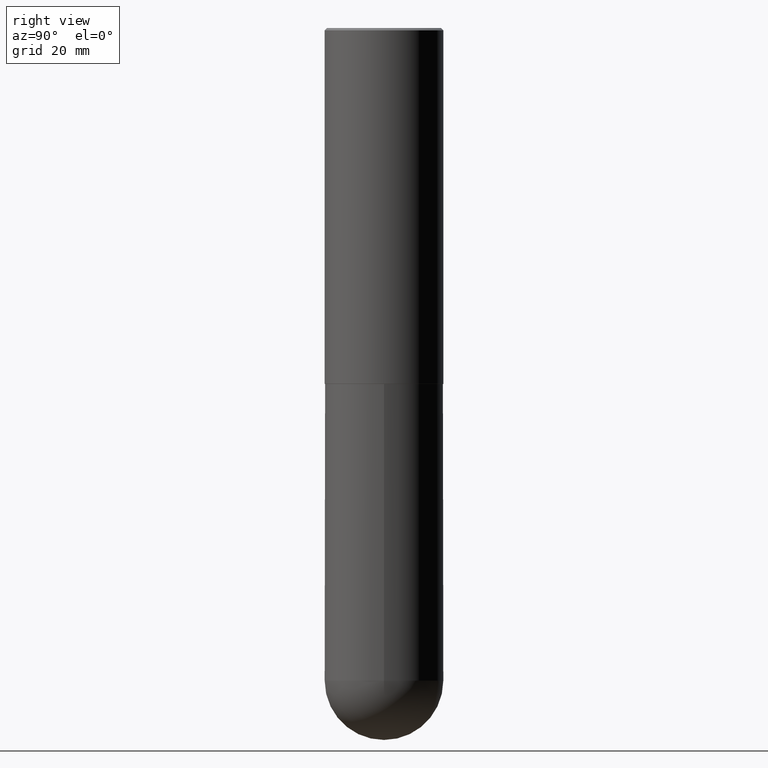
[diagram: clean part render]
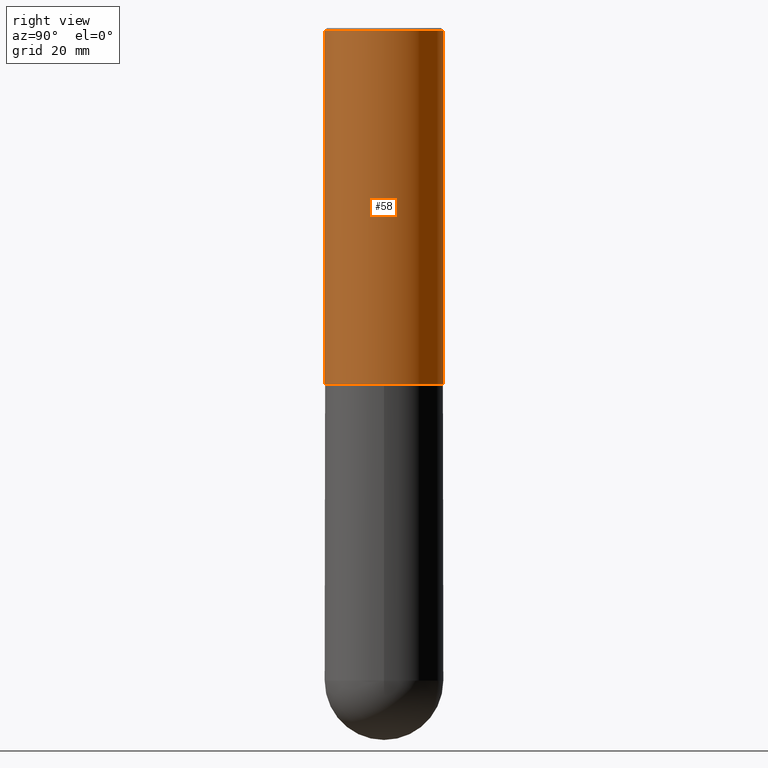
[diagram: same view with one face highlighted and labeled with its STEP entity id]
A machine part, right view. The second image highlights one B-rep face of the part: STEP entity #58.
In plain terms, the highlighted cylindrical surface (partial cylindrical patch) has radius 12.7 mm, axis along (-0, 0, 1).
Its self-contained STEP definition (entity closure, byte-faithful):
#4 = EDGE_CURVE ( 'NONE', #243, #206, #263, .T. ) ;
#9 = AXIS2_PLACEMENT_3D ( 'NONE', #41, #379, #201 ) ;
#17 = DIRECTION ( 'NONE',  ( -2.445681918219229661E-29, 3.491176150280740574E-15, 1.000000000000000000 ) ) ;
#28 = VECTOR ( 'NONE', #184, 39.37007874015748143 ) ;
#38 = DIRECTION ( 'NONE',  ( -6.982962677686265922E-15, -1.000000000000000000, 3.491176150280740574E-15 ) ) ;
#41 = CARTESIAN_POINT ( 'NONE',  ( 7.334600072739471352E-29, -1.047003727469194245E-14, -2.999000000000000554 ) ) ;
#57 = CIRCLE ( 'NONE', #288, 0.5000000000000000000 ) ;
#58 = ADVANCED_FACE ( 'NONE', ( #192 ), #231, .T. ) ;
#65 = DIRECTION ( 'NONE',  ( -2.445681918219229661E-29, 3.491176150280740574E-15, 1.000000000000000000 ) ) ;
#73 = AXIS2_PLACEMENT_3D ( 'NONE', #365, #65, #38 ) ;
#94 = CIRCLE ( 'NONE', #9, 0.5000000000000004441 ) ;
#98 = DIRECTION ( 'NONE',  ( -2.445681918219229661E-29, 3.491176150280740574E-15, 1.000000000000000000 ) ) ;
#115 = CARTESIAN_POINT ( 'NONE',  ( -3.430248998885764992E-15, -0.5000000000000001110, -0.01999999999999835937 ) ) ;
#140 = ORIENTED_EDGE ( 'NONE', *, *, #410, .F. ) ;
#184 = DIRECTION ( 'NONE',  ( -2.445681918219229661E-29, 3.491176150280740574E-15, 1.000000000000000000 ) ) ;
#192 = FACE_OUTER_BOUND ( 'NONE', #199, .T. ) ;
#197 = VECTOR ( 'NONE', #98, 39.37007874015748143 ) ;
#199 = EDGE_LOOP ( 'NONE', ( #362, #328, #140, #336 ) ) ;
#201 = DIRECTION ( 'NONE',  ( -6.982962677686265133E-15, -1.000000000000000000, 3.278217592397113101E-15 ) ) ;
#206 = VERTEX_POINT ( 'NONE', #115 ) ;
#219 = CARTESIAN_POINT ( 'NONE',  ( 3.552713678800501718E-15, 0.5000000000000002220, -1.745588075140371076E-15 ) ) ;
#231 = CYLINDRICAL_SURFACE ( 'NONE', #73, 0.5000000000000002220 ) ;
#243 = VERTEX_POINT ( 'NONE', #345 ) ;
#244 = CARTESIAN_POINT ( 'NONE',  ( 4.891363836438485106E-31, -6.982352300561518372E-17, -0.02000000000000010797 ) ) ;
#252 = EDGE_CURVE ( 'NONE', #243, #343, #94, .T. ) ;
#263 = LINE ( 'NONE', #386, #197 ) ;
#273 = CARTESIAN_POINT ( 'NONE',  ( 3.491481338843133355E-15, 0.4999999999999999445, -0.02000000000000185310 ) ) ;
#283 = LINE ( 'NONE', #219, #28 ) ;
#288 = AXIS2_PLACEMENT_3D ( 'NONE', #244, #17, #307 ) ;
#299 = VERTEX_POINT ( 'NONE', #273 ) ;
#307 = DIRECTION ( 'NONE',  ( -6.982962677686265922E-15, -1.000000000000000000, 3.491643216902136408E-15 ) ) ;
#328 = ORIENTED_EDGE ( 'NONE', *, *, #361, .T. ) ;
#336 = ORIENTED_EDGE ( 'NONE', *, *, #4, .F. ) ;
#343 = VERTEX_POINT ( 'NONE', #347 ) ;
#345 = CARTESIAN_POINT ( 'NONE',  ( -3.491481338843062752E-15, -0.5000000000000108802, -2.998999999999998778 ) ) ;
#347 = CARTESIAN_POINT ( 'NONE',  ( 3.552713678800539584E-15, 0.4999999999999900080, -2.999000000000001886 ) ) ;
#361 = EDGE_CURVE ( 'NONE', #343, #299, #283, .T. ) ;
#362 = ORIENTED_EDGE ( 'NONE', *, *, #252, .T. ) ;
#365 = CARTESIAN_POINT ( 'NONE',  ( 0.000000000000000000, 0.000000000000000000, 0.000000000000000000 ) ) ;
#379 = DIRECTION ( 'NONE',  ( -2.445681918219229661E-29, 3.491176150280740574E-15, 1.000000000000000000 ) ) ;
#386 = CARTESIAN_POINT ( 'NONE',  ( -3.491481338843134539E-15, -0.5000000000000002220, 1.745588075140371076E-15 ) ) ;
#410 = EDGE_CURVE ( 'NONE', #206, #299, #57, .T. ) ;